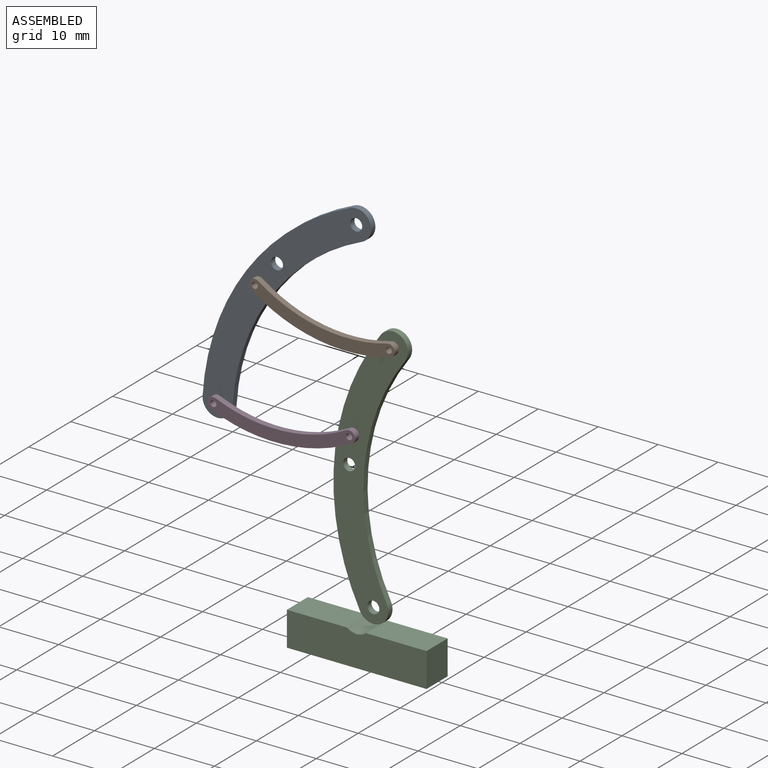
[diagram: assembled view]
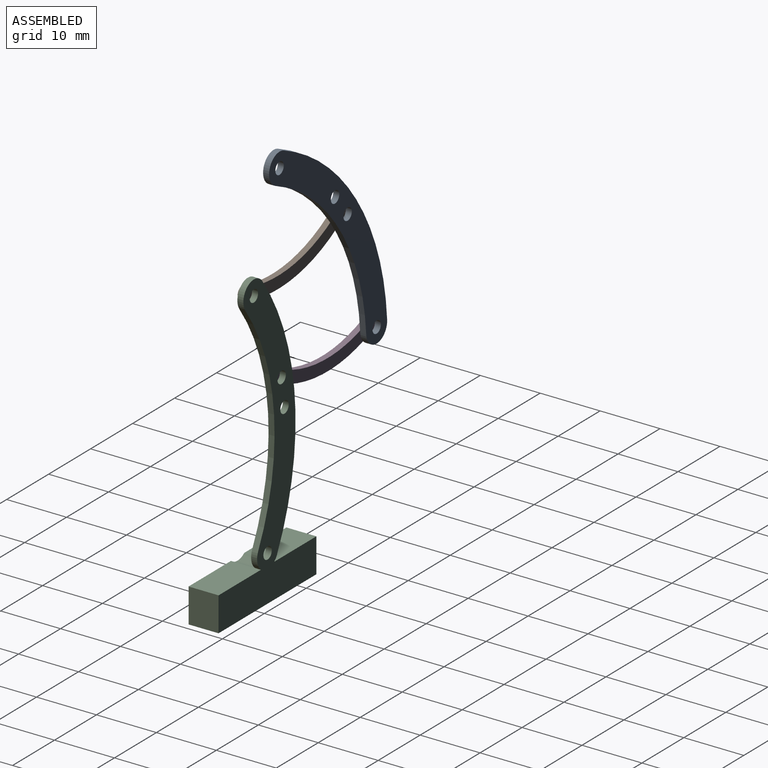
[diagram: assembled view, second angle]
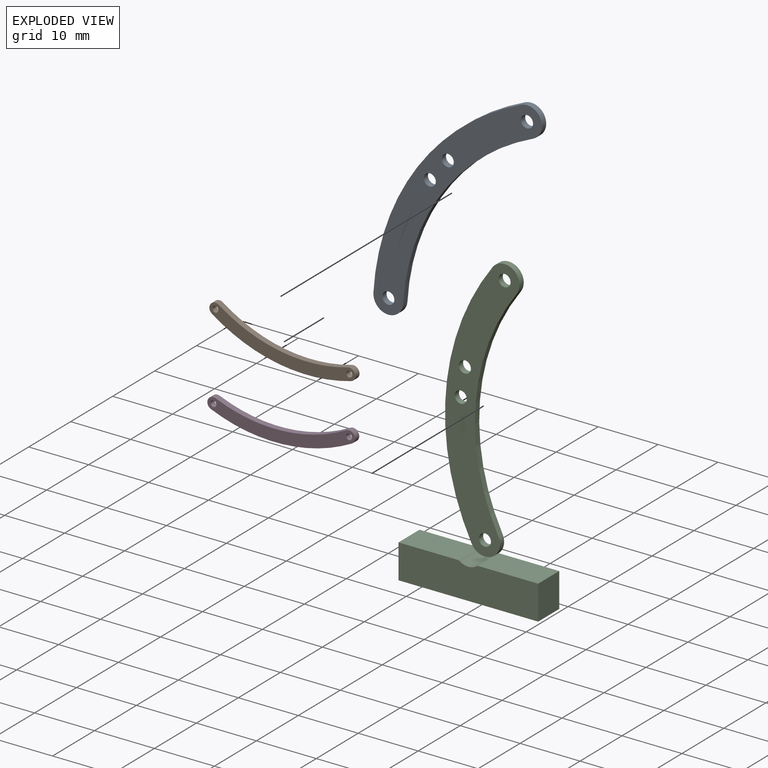
[diagram: exploded view]
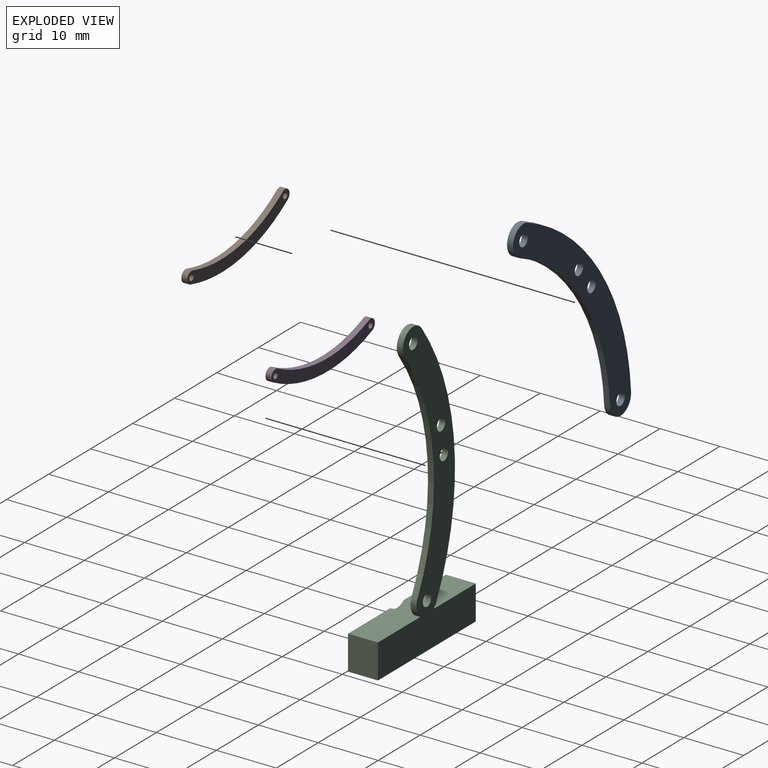
[diagram: exploded view, second angle]
ASSEMBLY  parts=4 mates=4
PART A: 10 faces, bbox 12.4x1x45 mm
  f0: cylinder r=2.5mm len=4.51mm, axis (0,1,0), area 7.9mm2, adj f1,f7,f8,f9
  f1: cylinder r=40.72mm len=42.62mm, axis (0,1,0), area 45mm2, adj f0,f2,f8,f9
  f2: cylinder r=2.5mm len=4.73mm, axis (0,1,0), area 7.9mm2, adj f1,f7,f8,f9
  f3: cylinder r=1mm len=2mm, axis (0,1,0), area 6.3mm2, adj f8,f9
  f4: cylinder r=1mm len=2mm, axis (0,1,0), area 6.3mm2, adj f8,f9
  f5: cylinder r=1mm len=2mm, axis (0,1,0), area 6.3mm2, adj f8,f9
  f6: cylinder r=1mm len=2mm, axis (0,1,0), area 6.3mm2, adj f8,f9
  f7: cylinder r=35.72mm len=37.38mm, axis (0,1,0), area 39.5mm2, adj f0,f2,f8,f9
  f8: plane 45x12.44mm, normal (0,-1,0), area 218.3mm2, adj f0,f1,f2,f3,f4,f5,f6,f7
  f9: plane 45x12.44mm, normal (0,1,0), area 218.3mm2, adj f0,f1,f2,f3,f4,f5,f6,f7
PART B: 8 faces, bbox 6.1x1x24.5 mm
  f0: cylinder r=25.5mm len=21.65mm, axis (0,1,0), area 22.5mm2, adj f1,f4,f6,f7
  f1: cylinder r=1mm len=1.84mm, axis (0,1,0), area 3.1mm2, adj f0,f2,f6,f7
  f2: cylinder r=27.5mm len=23.35mm, axis (0,1,0), area 24.3mm2, adj f1,f4,f6,f7
  f3: cylinder r=0.5mm len=1mm, axis (0,1,0), area 3.1mm2, adj f6,f7
  f4: cylinder r=1mm len=1.95mm, axis (0,1,0), area 3.1mm2, adj f0,f2,f6,f7
  f5: cylinder r=0.5mm len=1mm, axis (0,1,0), area 3.1mm2, adj f6,f7
  f6: plane 24.5x6.12mm, normal (0,-1,0), area 48.4mm2, adj f0,f1,f2,f3,f4,f5
  f7: plane 24.5x6.12mm, normal (0,1,0), area 48.4mm2, adj f0,f1,f2,f3,f4,f5
PART C: 18 faces, bbox 23.3x5x50.2 mm
  f0: cylinder r=2.5mm len=3.07mm, axis (0,1,0), area 3.4mm2, adj f8,f9,f10,f12
  f1: cylinder r=2.5mm len=4.51mm, axis (0,1,0), area 7.9mm2, adj f2,f8,f9,f10
  f2: cylinder r=40.72mm len=42.62mm, axis (0,1,0), area 45mm2, adj f1,f3,f9,f10
  f3: cylinder r=2.5mm len=1mm, axis (0,1,0), area 1mm2, adj f2,f9,f10,f13
  f4: cylinder r=1mm len=2mm, axis (0,1,0), area 6.3mm2, adj f9,f10
  f5: cylinder r=1mm len=2mm, axis (0,1,0), area 6.3mm2, adj f9,f10
  f6: cylinder r=1mm len=2mm, axis (0,1,0), area 6.3mm2, adj f9,f10
  f7: cylinder r=1mm len=2mm, axis (0,1,0), area 6.3mm2, adj f9,f10
  f8: cylinder r=35.72mm len=37.38mm, axis (0,1,0), area 39.5mm2, adj f0,f1,f9,f10
  f9: plane 45x12.44mm, normal (0,-1,0), area 218.3mm2, adj f0,f1,f2,f3,f4,f5,f6,f7
  f10: plane 50.16x23.31mm, normal (0,1,0), area 350.4mm2, adj f0,f1,f2,f3,f4,f5,f6,f7
  f11: cylinder r=2.5mm len=4mm, axis (0,1,0), area 13.7mm2, adj f9,f12,f13,f17
  f12: plane 10.11x5mm, normal (0,0,1), area 50.5mm2, adj f0,f10,f11,f16,f17
  f13: plane 10.04x5mm, normal (0,0,1), area 50.2mm2, adj f3,f10,f11,f14,f17
  f14: plane 5.72x5mm, normal (-1,0,0), area 28.6mm2, adj f10,f13,f15,f17
  f15: plane 23.31x5mm, normal (0,0,-1), area 116.5mm2, adj f10,f14,f16,f17
  f16: plane 5.72x5mm, normal (1,0,0), area 28.6mm2, adj f10,f12,f15,f17
  f17: plane 23.31x5.72mm, normal (0,-1,0), area 132.1mm2, adj f11,f12,f13,f14,f15,f16
PART D: 8 faces, bbox 6.1x1x24.5 mm
  f0: cylinder r=25.5mm len=21.65mm, axis (0,1,0), area 22.5mm2, adj f1,f4,f6,f7
  f1: cylinder r=1mm len=1.84mm, axis (0,1,0), area 3.1mm2, adj f0,f2,f6,f7
  f2: cylinder r=27.5mm len=23.35mm, axis (0,1,0), area 24.3mm2, adj f1,f4,f6,f7
  f3: cylinder r=0.5mm len=1mm, axis (0,1,0), area 3.1mm2, adj f6,f7
  f4: cylinder r=1mm len=1.95mm, axis (0,1,0), area 3.1mm2, adj f0,f2,f6,f7
  f5: cylinder r=0.5mm len=1mm, axis (0,1,0), area 3.1mm2, adj f6,f7
  f6: plane 24.5x6.12mm, normal (0,-1,0), area 48.4mm2, adj f0,f1,f2,f3,f4,f5
  f7: plane 24.5x6.12mm, normal (0,1,0), area 48.4mm2, adj f0,f1,f2,f3,f4,f5
PLACE A rot(axis=(0,1,0),30.5deg) t=(-6.96,0,-30.05)mm
PLACE B rot(axis=(0,1,0),92.6deg) t=(-92.64,4,126.43)mm
PLACE C at identity fixed
PLACE D rot(axis=(0,1,0),80.2deg) t=(-116.71,4,111.11)mm
MATE revolute C.f1 <-> B.f3  axis (0,-1,0) through (-67.51,-1,47.66)mm
MATE revolute A.f2 <-> D.f1  axis (0,-1,0) through (-96.78,-1,31.79)mm
MATE revolute C.f7 <-> D.f3  axis (0,-1,0) through (-74.13,-1,32.86)mm
MATE revolute A.f5 <-> B.f1  axis (0,-1,0) through (-89.86,-1,51.47)mm
